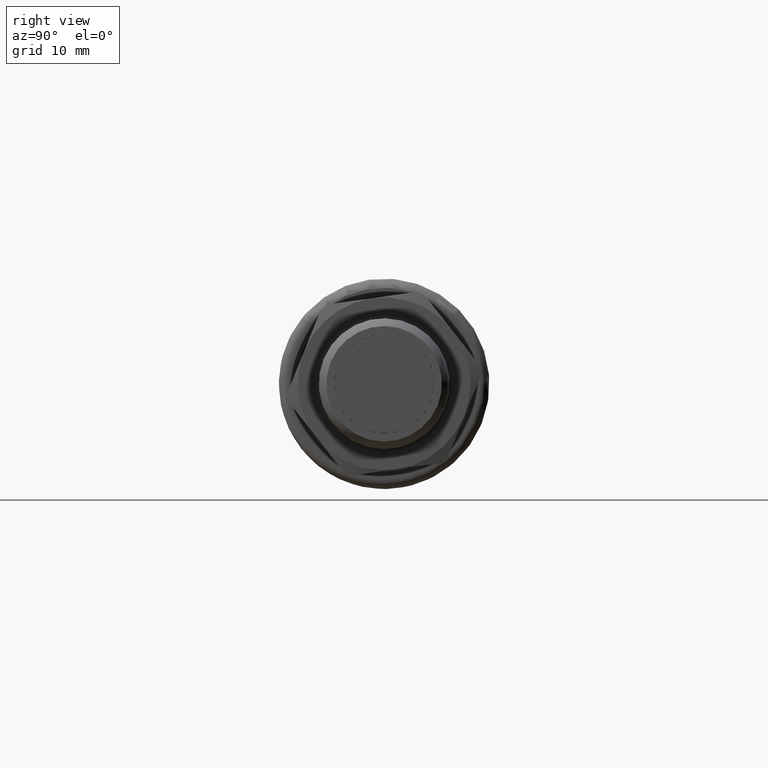
[diagram: clean part render]
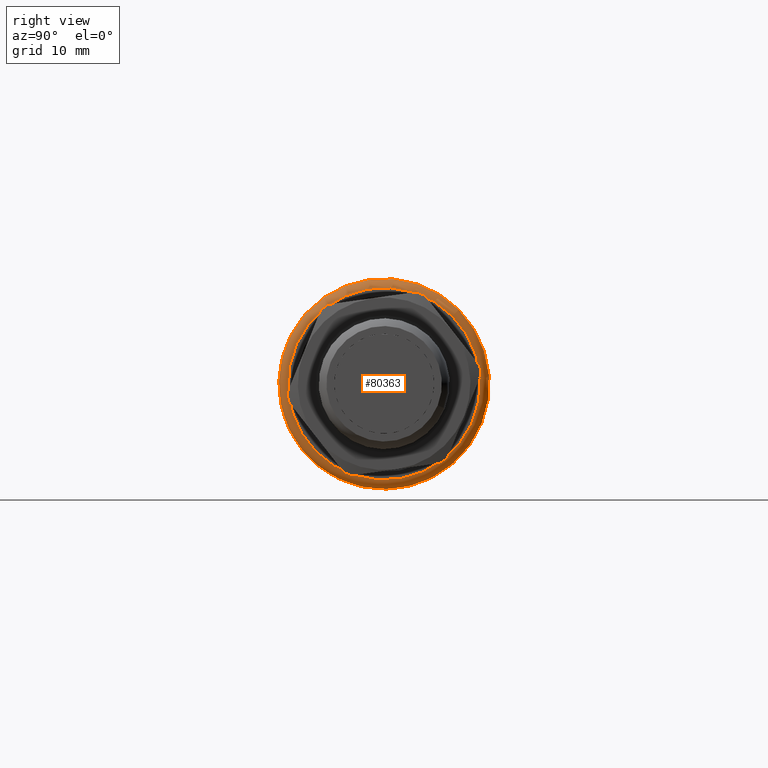
[diagram: same view with one face highlighted and labeled with its STEP entity id]
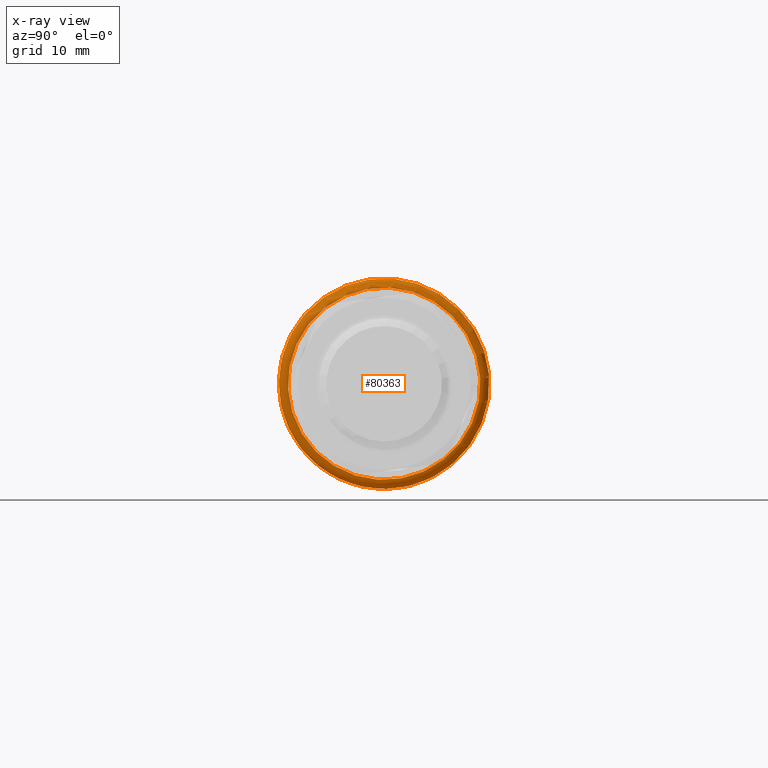
[diagram: x-ray of the same camera — body ghosted, the highlighted face saturated]
A machine part, right view. The second image highlights one B-rep face of the part: STEP entity #80363.
The next image is the same camera in x-ray: the body ghosted, the highlighted face saturated — about 2% of this face is hidden behind the body in this view.
In plain terms, the highlighted toroidal blend (fillet) surface has major radius 10.575 mm and minor (blend) radius 1 mm.
Its self-contained STEP definition (entity closure, byte-faithful):
#80336=CARTESIAN_POINT('',(27.75,0.0,0.0));
#80337=DIRECTION('',(1.0,0.0,0.0));
#80338=DIRECTION('',(0.0,0.70493365541007,-0.709273248804858));
#80339=AXIS2_PLACEMENT_3D('',#80336,#80337,#80338);
#80340=TOROIDAL_SURFACE('',#80339,10.574999999999999,1.0);
#80341=CARTESIAN_POINT('',(27.75,8.209837854916225,8.159607061371556));
#80342=VERTEX_POINT('',#80341);
#80343=CARTESIAN_POINT('',(27.75,0.0,0.0));
#80344=DIRECTION('',(1.0,0.0,0.0));
#80345=DIRECTION('',(0.0,-0.709273248804858,-0.70493365541007));
#80346=AXIS2_PLACEMENT_3D('',#80343,#80344,#80345);
#80347=CIRCLE('',#80346,11.574999999999999);
#80348=EDGE_CURVE('',#80342,#80342,#80347,.T.);
#80349=ORIENTED_EDGE('',*,*,#80348,.T.);
#80350=EDGE_LOOP('',(#80349));
#80351=FACE_OUTER_BOUND('',#80350,.T.);
#80352=CARTESIAN_POINT('',(28.75,7.50056460611137,7.454673405961483));
#80353=VERTEX_POINT('',#80352);
#80354=CARTESIAN_POINT('',(28.75,0.0,0.0));
#80355=DIRECTION('',(-1.0,0.0,0.0));
#80356=DIRECTION('',(0.0,-0.709273248804858,-0.704933655410069));
#80357=AXIS2_PLACEMENT_3D('',#80354,#80355,#80356);
#80358=CIRCLE('',#80357,10.574999999999998);
#80359=EDGE_CURVE('',#80353,#80353,#80358,.T.);
#80360=ORIENTED_EDGE('',*,*,#80359,.T.);
#80361=EDGE_LOOP('',(#80360));
#80362=FACE_BOUND('',#80361,.T.);
#80363=ADVANCED_FACE('',(#80351,#80362),#80340,.T.);